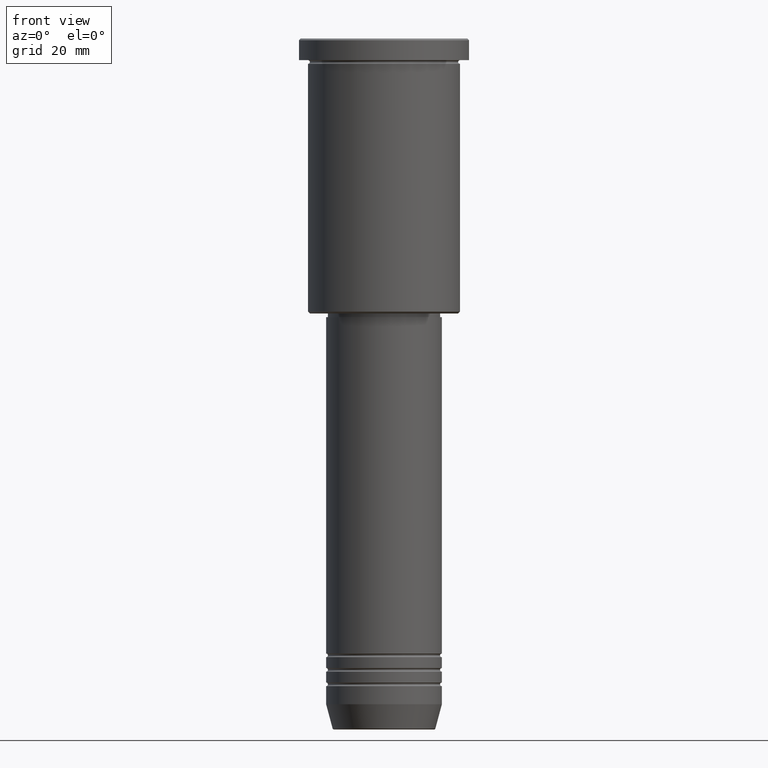
[diagram: clean part render]
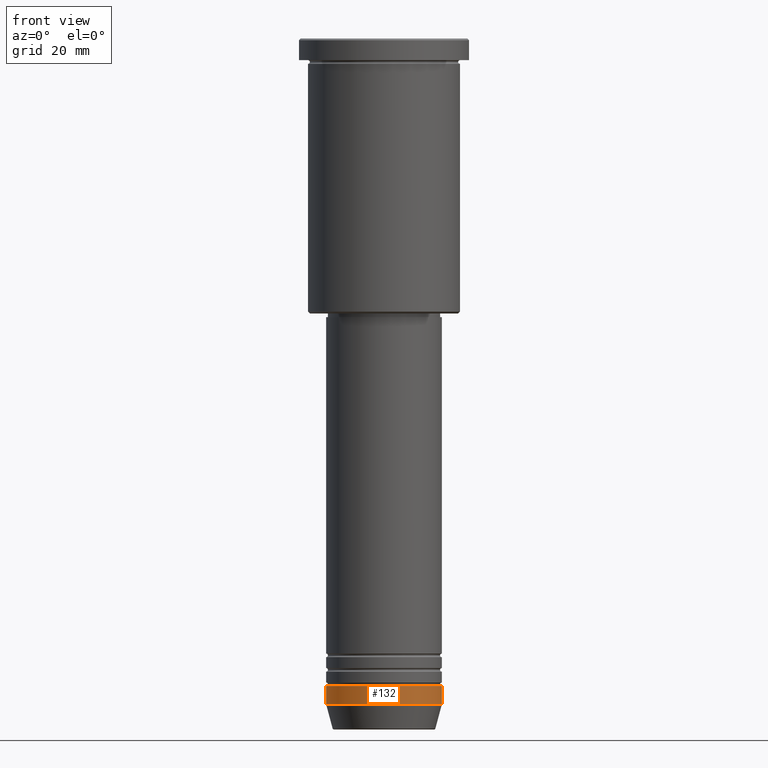
[diagram: same view with one face highlighted and labeled with its STEP entity id]
A machine part, front view. The second image highlights one B-rep face of the part: STEP entity #132.
In plain terms, the highlighted cylindrical surface (partial cylindrical patch) has radius 16 mm, axis along (-0, -0, 1).
Its self-contained STEP definition (entity closure, byte-faithful):
#98 = CARTESIAN_POINT ( 'NONE',  ( 0.000000000000000000, 0.000000000000000000, -184.0000000000000000 ) ) ;
#110 = DIRECTION ( 'NONE',  ( -0.000000000000000000, -0.000000000000000000, 1.000000000000000000 ) ) ;
#132 = ADVANCED_FACE ( 'NONE', ( #699 ), #336, .T. ) ;
#156 = DIRECTION ( 'NONE',  ( 1.000000000000000000, 0.000000000000000000, 0.000000000000000000 ) ) ;
#251 = CARTESIAN_POINT ( 'NONE',  ( 0.000000000000000000, 0.000000000000000000, 0.000000000000000000 ) ) ;
#276 = DIRECTION ( 'NONE',  ( -0.000000000000000000, -0.000000000000000000, 1.000000000000000000 ) ) ;
#280 = EDGE_CURVE ( 'NONE', #1117, #1105, #1137, .T. ) ;
#288 = ORIENTED_EDGE ( 'NONE', *, *, #675, .F. ) ;
#336 = CYLINDRICAL_SURFACE ( 'NONE', #774, 16.00000000000000000 ) ;
#341 = DIRECTION ( 'NONE',  ( -0.000000000000000000, -0.000000000000000000, 1.000000000000000000 ) ) ;
#410 = CARTESIAN_POINT ( 'NONE',  ( 16.00000000000000000, 0.000000000000000000, -184.0000000000000000 ) ) ;
#418 = LINE ( 'NONE', #440, #443 ) ;
#419 = CARTESIAN_POINT ( 'NONE',  ( -16.00000000000000000, 1.959434878635765131E-15, -184.0000000000000000 ) ) ;
#440 = CARTESIAN_POINT ( 'NONE',  ( -16.00000000000000000, 1.959434878635765131E-15, 0.000000000000000000 ) ) ;
#443 = VECTOR ( 'NONE', #982, 1000.000000000000000 ) ;
#458 = DIRECTION ( 'NONE',  ( 1.000000000000000000, 0.000000000000000000, 0.000000000000000000 ) ) ;
#565 = LINE ( 'NONE', #921, #783 ) ;
#597 = CARTESIAN_POINT ( 'NONE',  ( -16.00000000000000000, 1.959434878635765131E-15, -179.0000000000000284 ) ) ;
#675 = EDGE_CURVE ( 'NONE', #876, #1063, #1090, .T. ) ;
#680 = EDGE_CURVE ( 'NONE', #1105, #1063, #565, .T. ) ;
#699 = FACE_OUTER_BOUND ( 'NONE', #834, .T. ) ;
#719 = ORIENTED_EDGE ( 'NONE', *, *, #680, .T. ) ;
#774 = AXIS2_PLACEMENT_3D ( 'NONE', #251, #341, #156 ) ;
#783 = VECTOR ( 'NONE', #110, 1000.000000000000000 ) ;
#796 = CARTESIAN_POINT ( 'NONE',  ( 16.00000000000000000, 0.000000000000000000, -179.0000000000000284 ) ) ;
#805 = ORIENTED_EDGE ( 'NONE', *, *, #280, .T. ) ;
#834 = EDGE_LOOP ( 'NONE', ( #868, #805, #719, #288 ) ) ;
#868 = ORIENTED_EDGE ( 'NONE', *, *, #885, .F. ) ;
#876 = VERTEX_POINT ( 'NONE', #597 ) ;
#885 = EDGE_CURVE ( 'NONE', #1117, #876, #418, .T. ) ;
#908 = AXIS2_PLACEMENT_3D ( 'NONE', #98, #276, #458 ) ;
#912 = DIRECTION ( 'NONE',  ( -0.000000000000000000, -0.000000000000000000, 1.000000000000000000 ) ) ;
#921 = CARTESIAN_POINT ( 'NONE',  ( 16.00000000000000000, 0.000000000000000000, 0.000000000000000000 ) ) ;
#982 = DIRECTION ( 'NONE',  ( -0.000000000000000000, -0.000000000000000000, 1.000000000000000000 ) ) ;
#984 = DIRECTION ( 'NONE',  ( 1.000000000000000000, 0.000000000000000000, 0.000000000000000000 ) ) ;
#1008 = AXIS2_PLACEMENT_3D ( 'NONE', #1177, #912, #984 ) ;
#1063 = VERTEX_POINT ( 'NONE', #796 ) ;
#1090 = CIRCLE ( 'NONE', #1008, 16.00000000000000000 ) ;
#1105 = VERTEX_POINT ( 'NONE', #410 ) ;
#1117 = VERTEX_POINT ( 'NONE', #419 ) ;
#1137 = CIRCLE ( 'NONE', #908, 16.00000000000000000 ) ;
#1177 = CARTESIAN_POINT ( 'NONE',  ( 0.000000000000000000, 0.000000000000000000, -179.0000000000000284 ) ) ;